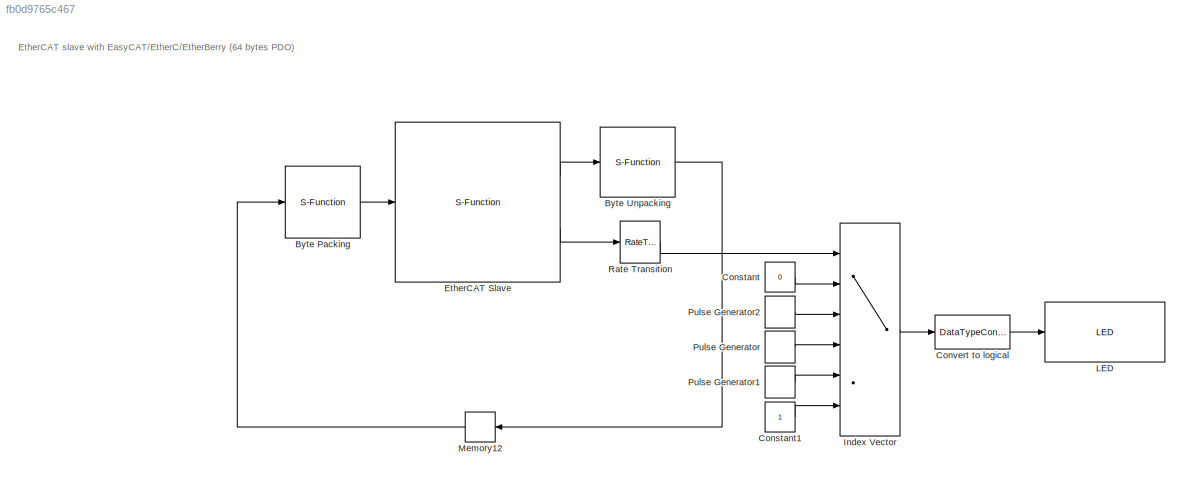
MODEL slx_fb0d9765c467
KIND model
CONFIG AbsTol = auto
CONFIG EnableMultiTasking = on
CONFIG FixedStep = auto
CONFIG MaxStep = auto
CONFIG MinStep = auto
CONFIG RelTol = 1e-3
CONFIG SampleTimeConstraint = Unconstrained
CONFIG Solver = ode45
CONFIG SolverName = ode45
CONFIG StartTime = 0.0
CONFIG StopTime = 10.0
BLOCK [S-Function] Byte Packing
  CopyFcn = set_param(gcbh,'LinkStatus','none')
  EnableBusSupport = off
  FunctionName = Pack64
  InitFcn = try, set_param(gcb,'FunctionName','Pack64'), end
  OpenFcn = sfunctionwizard(gcbh)
  Ports = [1, 1]
  PreSaveFcn = try, set_param(gcb,'FunctionName','Pack64'), end
  SFcnIsStateOwnerBlock = off
  SFunctionDeploymentMode = off
  SFunctionModules = Pack64_wrapper
BLOCK [S-Function] Byte Unpacking
  CopyFcn = set_param(gcbh,'LinkStatus','none')
  EnableBusSupport = off
  FunctionName = Unpack64
  InitFcn = try, set_param(gcb,'FunctionName','Unpack64'), end
  OpenFcn = sfunctionwizard(gcbh)
  Ports = [1, 1]
  PreSaveFcn = try, set_param(gcb,'FunctionName','Unpack64'), end
  SFcnIsStateOwnerBlock = off
  SFunctionDeploymentMode = off
  SFunctionModules = Unpack64_wrapper
BLOCK [Constant] Constant
  SampleTime = 0.1
  Value = 0
BLOCK [Constant] Constant1
  SampleTime = 0.1
BLOCK [DataTypeConversion] Convert to logical
  RndMeth = Floor
  SaturateOnIntegerOverflow = off
BLOCK [S-Function] EtherCAT Slave
  CopyFcn = set_param(gcbh,'LinkStatus','none')
  EnableBusSupport = off
  FunctionName = SOES_raspberrypi_64bytes
  InitFcn = try, set_param(gcb,'FunctionName','SOES_raspberrypi_64bytes'), end
  OpenFcn = sfunctionwizard(gcbh)
  Ports = [1, 2]
  PreSaveFcn = try, set_param(gcb,'FunctionName','SOES_raspberrypi_64bytes'), end
  SFcnIsStateOwnerBlock = off
  SFunctionDeploymentMode = off
  SFunctionModules = SOES_raspberrypi_64bytes_wrapper slave_objectlist
BLOCK [MultiPortSwitch] Index Vector
  DataPortIndices = {1,2,3,4,8}
  DataPortOrder = Specify indices
  InputSameDT = off
  Inputs = 5
  Ports = [6, 1]
  SaturateOnIntegerOverflow = off
BLOCK [Reference] LED  REF=embdlinuxlib/LED
  Ports = [1]
  SourceBlock = embdlinuxlib/LED
  SourceProductBaseCode = SC_BEAGLEBONE_BLUE,RASPPI
  SourceType = LED Write
BLOCK [Memory] Memory12
BLOCK [DiscretePulseGenerator] Pulse Generator
  Period = 10
  Ports = [0, 1]
  PulseWidth = 5
  SampleTime = 0.1
BLOCK [DiscretePulseGenerator] Pulse Generator1
  Period = 6
  Ports = [0, 1]
  PulseWidth = 3
  SampleTime = 0.1
BLOCK [DiscretePulseGenerator] Pulse Generator2
  Period = 20
  Ports = [0, 1]
  PulseWidth = 10
  SampleTime = 0.1
BLOCK [RateTransition] Rate Transition
  OutPortSampleTime = 0.1
ANNOTATION (root): EtherCAT slave with EasyCAT/EtherC/EtherBerry (64 bytes PDO)
LINE Byte Packing:1 -> EtherCAT Slave:1
LINE Byte Unpacking:1 -> Memory12:1
LINE Constant1:1 -> Index Vector:6
LINE Constant:1 -> Index Vector:2
LINE Convert to logical:1 -> LED:1
LINE EtherCAT Slave:1 -> Byte Unpacking:1
LINE EtherCAT Slave:2 -> Rate Transition:1
LINE Index Vector:1 -> Convert to logical:1
LINE Memory12:1 -> Byte Packing:1
LINE Pulse Generator1:1 -> Index Vector:5
LINE Pulse Generator2:1 -> Index Vector:3
LINE Pulse Generator:1 -> Index Vector:4
LINE Rate Transition:1 -> Index Vector:1
